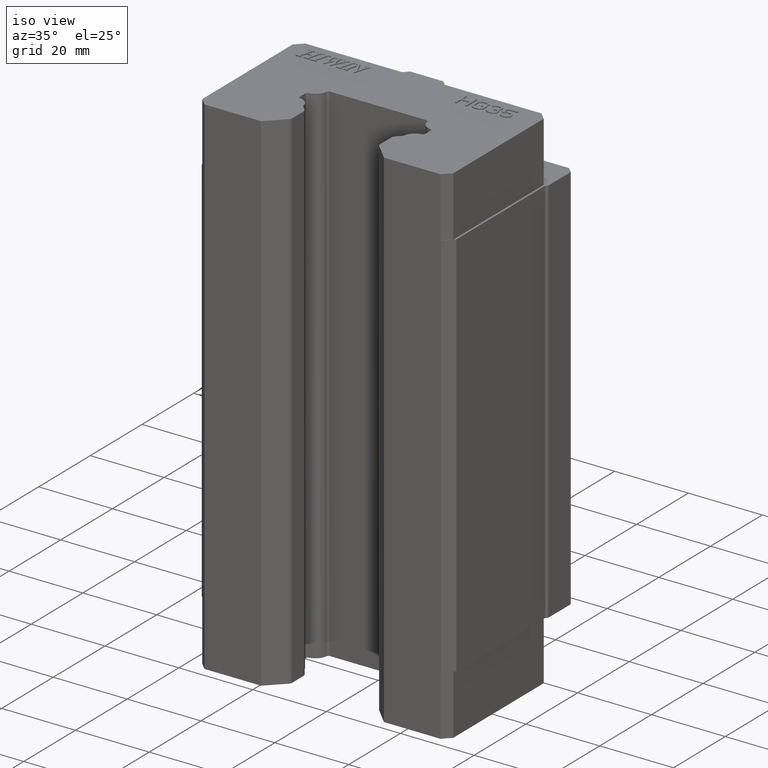
[diagram: clean part render]
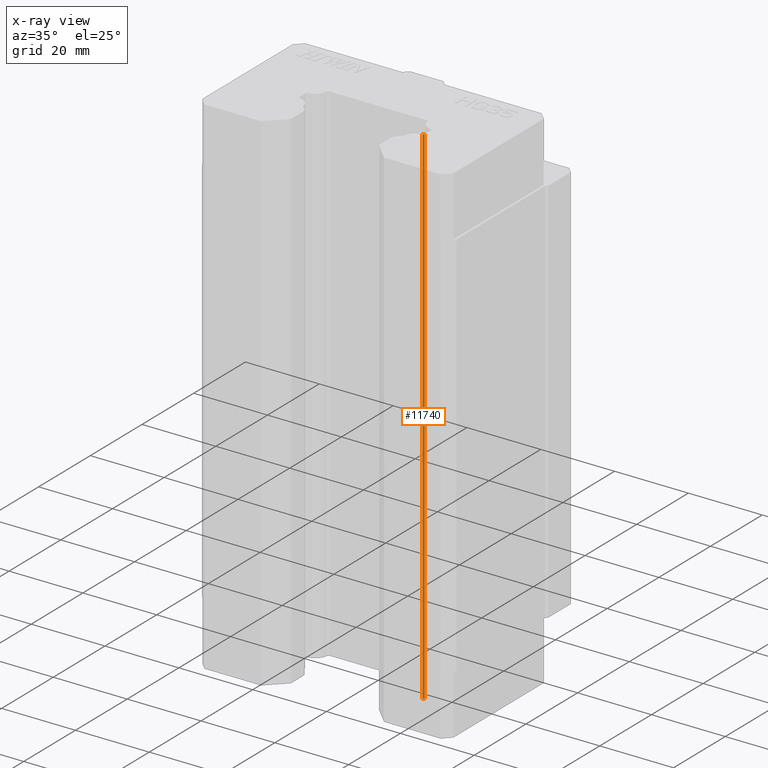
[diagram: x-ray — body ghosted, one internal face saturated and labeled with its STEP entity id]
A machine part, iso view, then the same camera in x-ray: the body is ghosted and one INTERNAL B-rep face — a face not visible from any outside direction — is saturated and labeled: STEP entity #11740.
In plain terms, the highlighted planar face has unit normal (-0.7071, 0.7071, 0).
Its self-contained STEP definition (entity closure, byte-faithful):
#6884 = DIRECTION ( 'NONE',  ( 0.0000000000000000000, 0.0000000000000000000, 1.000000000000000000 ) ) ;
#6885 = VECTOR ( 'NONE', #6884, 1000.000000000000000 ) ;
#6887 = CARTESIAN_POINT ( 'NONE',  ( 17.00000000000000000, -6.261421356237000200, -52.90000000000000600 ) ) ;
#6888 = LINE ( 'NONE', #6887, #6885 ) ;
#6889 = CARTESIAN_POINT ( 'NONE',  ( 17.00000000000000000, -6.261421356237000200, 69.09999999999999400 ) ) ;
#6890 = DIRECTION ( 'NONE',  ( 0.7071067811865975300, 0.7071067811864976100, 0.0000000000000000000 ) ) ;
#6891 = VECTOR ( 'NONE', #6890, 1000.000000000000100 ) ;
#6892 = CARTESIAN_POINT ( 'NONE',  ( 17.00000000000000000, -6.261421356237000200, 69.09999999999999400 ) ) ;
#6893 = LINE ( 'NONE', #6892, #6891 ) ;
#6894 = CARTESIAN_POINT ( 'NONE',  ( 16.63447797535927500, -6.626943380878366000, 69.09999999999999400 ) ) ;
#6895 = DIRECTION ( 'NONE',  ( 0.0000000000000000000, 0.0000000000000000000, -1.000000000000000000 ) ) ;
#6896 = VECTOR ( 'NONE', #6895, 1000.000000000000000 ) ;
#6897 = CARTESIAN_POINT ( 'NONE',  ( 16.63447797536002100, -6.626943380878311800, -52.90000000000000600 ) ) ;
#6898 = LINE ( 'NONE', #6897, #6896 ) ;
#6956 = CARTESIAN_POINT ( 'NONE',  ( 16.63447797535927500, -6.626943380878366000, -69.09999999999999400 ) ) ;
#6957 = CARTESIAN_POINT ( 'NONE',  ( 17.00000000000000000, -6.261421356237001100, -69.09999999999999400 ) ) ;
#6958 = DIRECTION ( 'NONE',  ( -0.7071067811865975300, -0.7071067811864976100, 0.0000000000000000000 ) ) ;
#6959 = VECTOR ( 'NONE', #6958, 1000.000000000000100 ) ;
#6960 = CARTESIAN_POINT ( 'NONE',  ( 17.00000000000000000, -6.261421356237000200, -69.09999999999999400 ) ) ;
#6961 = LINE ( 'NONE', #6960, #6959 ) ;
#7127 = DIRECTION ( 'NONE',  ( -0.7071067811865975300, -0.7071067811864976100, 0.0000000000000000000 ) ) ;
#7128 = DIRECTION ( 'NONE',  ( -0.7071067811864976100, 0.7071067811865975300, 0.0000000000000000000 ) ) ;
#7129 = CARTESIAN_POINT ( 'NONE',  ( 17.00000000000000000, -6.261421356237000200, -52.90000000000000600 ) ) ;
#7130 = AXIS2_PLACEMENT_3D ( 'NONE', #7129, #7128, #7127 ) ;
#7131 = PLANE ( 'NONE',  #7130 ) ;
#7132 = FACE_OUTER_BOUND ( 'NONE', #11741, .T. ) ;
#11622 = ORIENTED_EDGE ( 'NONE', *, *, #11623, .F. ) ;
#11623 = EDGE_CURVE ( 'NONE', #11624, #11660, #6898, .T. ) ;
#11624 = VERTEX_POINT ( 'NONE', #6894 ) ;
#11625 = ORIENTED_EDGE ( 'NONE', *, *, #11626, .T. ) ;
#11626 = EDGE_CURVE ( 'NONE', #11624, #11627, #6893, .T. ) ;
#11627 = VERTEX_POINT ( 'NONE', #6889 ) ;
#11628 = ORIENTED_EDGE ( 'NONE', *, *, #11629, .F. ) ;
#11629 = EDGE_CURVE ( 'NONE', #11659, #11627, #6888, .T. ) ;
#11658 = EDGE_CURVE ( 'NONE', #11659, #11660, #6961, .T. ) ;
#11659 = VERTEX_POINT ( 'NONE', #6957 ) ;
#11660 = VERTEX_POINT ( 'NONE', #6956 ) ;
#11740 = ADVANCED_FACE ( 'NONE', ( #7132 ), #7131, .T. ) ;
#11741 = EDGE_LOOP ( 'NONE', ( #11742, #11622, #11625, #11628 ) ) ;
#11742 = ORIENTED_EDGE ( 'NONE', *, *, #11658, .T. ) ;